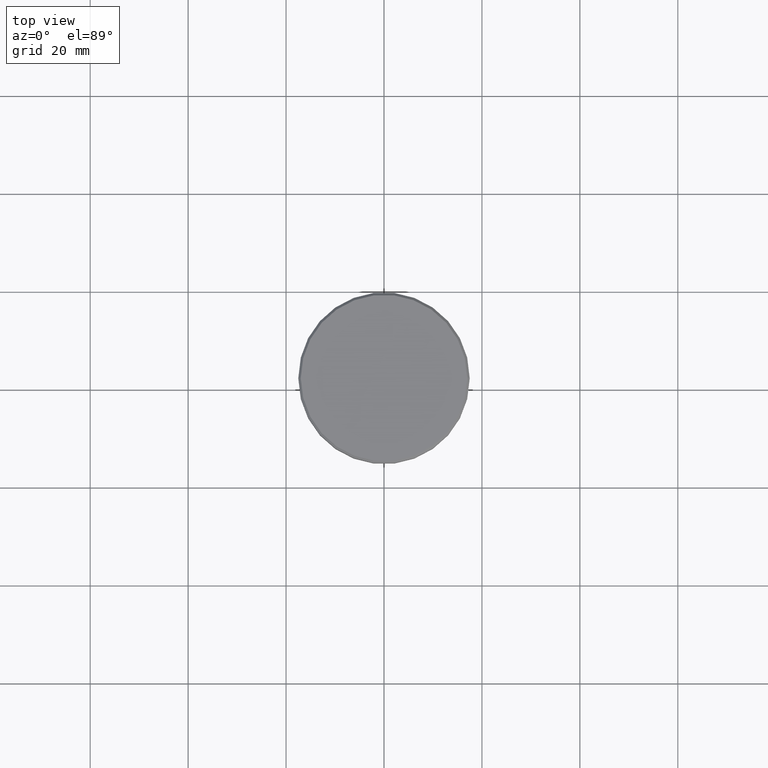
[diagram: clean part render]
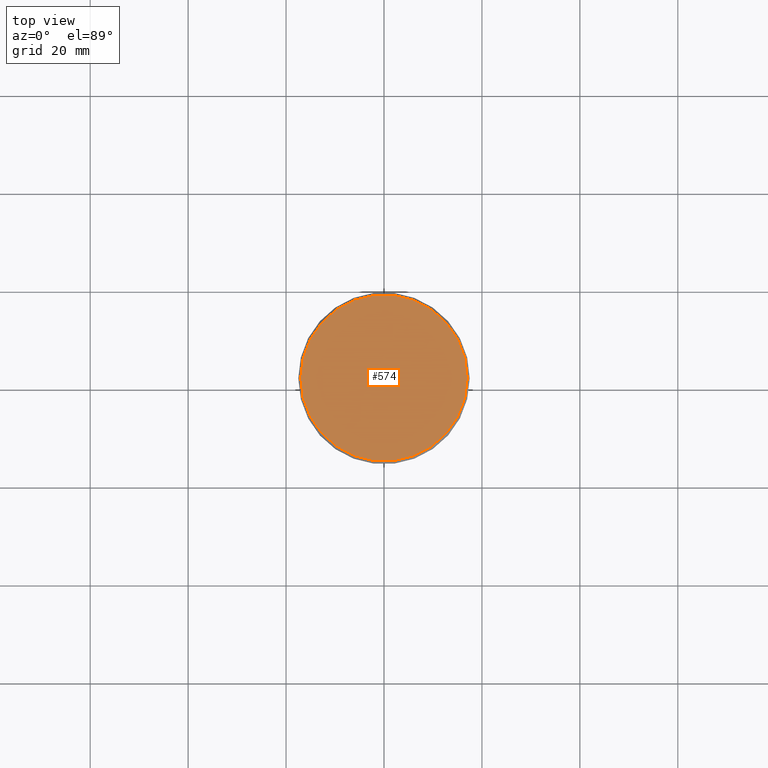
[diagram: same view with one face highlighted and labeled with its STEP entity id]
A machine part, top view. The second image highlights one B-rep face of the part: STEP entity #574.
In plain terms, the highlighted planar face has unit normal (0, -0, 1).
Its self-contained STEP definition (entity closure, byte-faithful):
#41 = VERTEX_POINT ( 'NONE', #97 ) ;
#72 = VERTEX_POINT ( 'NONE', #930 ) ;
#97 = CARTESIAN_POINT ( 'NONE',  ( -16.99999999999998579, 0.000000000000000000, 0.000000000000000000 ) ) ;
#148 = DIRECTION ( 'NONE',  ( -0.000000000000000000, -0.000000000000000000, 1.000000000000000000 ) ) ;
#177 = EDGE_LOOP ( 'NONE', ( #899, #1135 ) ) ;
#269 = EDGE_CURVE ( 'NONE', #72, #41, #503, .T. ) ;
#295 = DIRECTION ( 'NONE',  ( 0.000000000000000000, -0.000000000000000000, 1.000000000000000000 ) ) ;
#427 = DIRECTION ( 'NONE',  ( 1.000000000000000000, 0.000000000000000000, 0.000000000000000000 ) ) ;
#503 = CIRCLE ( 'NONE', #1099, 16.99999999999998579 ) ;
#574 = ADVANCED_FACE ( 'NONE', ( #837 ), #828, .T. ) ;
#717 = AXIS2_PLACEMENT_3D ( 'NONE', #967, #148, #950 ) ;
#821 = CARTESIAN_POINT ( 'NONE',  ( 0.000000000000000000, 0.000000000000000000, 0.000000000000000000 ) ) ;
#828 = PLANE ( 'NONE',  #1085 ) ;
#837 = FACE_OUTER_BOUND ( 'NONE', #177, .T. ) ;
#840 = CARTESIAN_POINT ( 'NONE',  ( 0.000000000000000000, 0.000000000000000000, 0.000000000000000000 ) ) ;
#848 = EDGE_CURVE ( 'NONE', #41, #72, #876, .T. ) ;
#876 = CIRCLE ( 'NONE', #717, 16.99999999999998579 ) ;
#899 = ORIENTED_EDGE ( 'NONE', *, *, #848, .T. ) ;
#930 = CARTESIAN_POINT ( 'NONE',  ( 16.99999999999998579, 2.112515728529183278E-15, 0.000000000000000000 ) ) ;
#950 = DIRECTION ( 'NONE',  ( 1.000000000000000000, 0.000000000000000000, 0.000000000000000000 ) ) ;
#967 = CARTESIAN_POINT ( 'NONE',  ( 0.000000000000000000, 0.000000000000000000, 0.000000000000000000 ) ) ;
#978 = DIRECTION ( 'NONE',  ( -0.000000000000000000, -0.000000000000000000, 1.000000000000000000 ) ) ;
#1085 = AXIS2_PLACEMENT_3D ( 'NONE', #840, #295, #1097 ) ;
#1097 = DIRECTION ( 'NONE',  ( 1.000000000000000000, 0.000000000000000000, 0.000000000000000000 ) ) ;
#1099 = AXIS2_PLACEMENT_3D ( 'NONE', #821, #978, #427 ) ;
#1135 = ORIENTED_EDGE ( 'NONE', *, *, #269, .T. ) ;